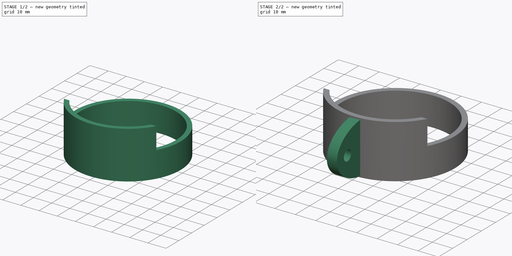
[diagram: build sequence overview — one tinted view per stage of 2, left to right]
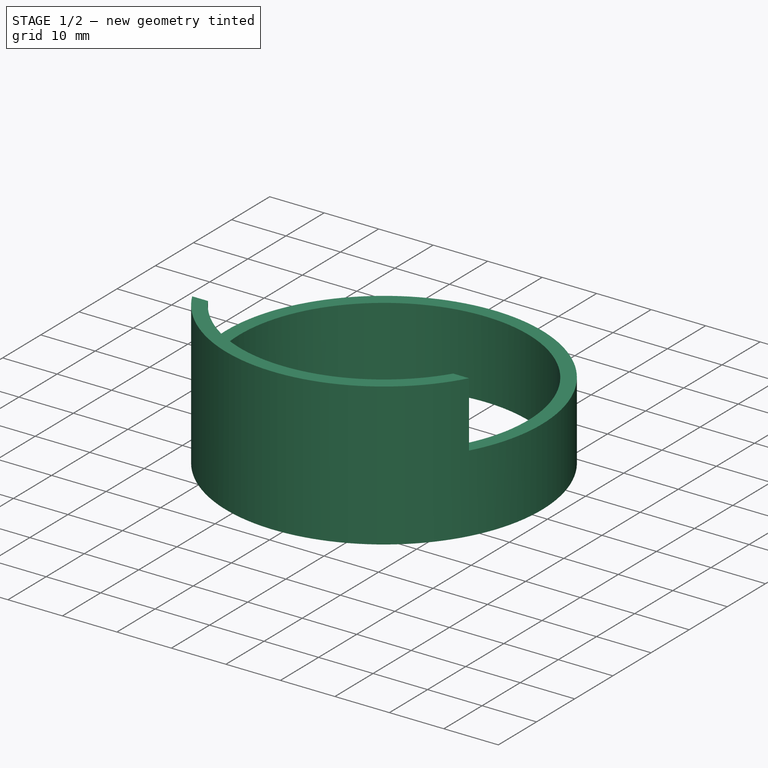
[diagram: stage 1 of 2 — iso view after this stage's code; geometry added in this stage tinted green]
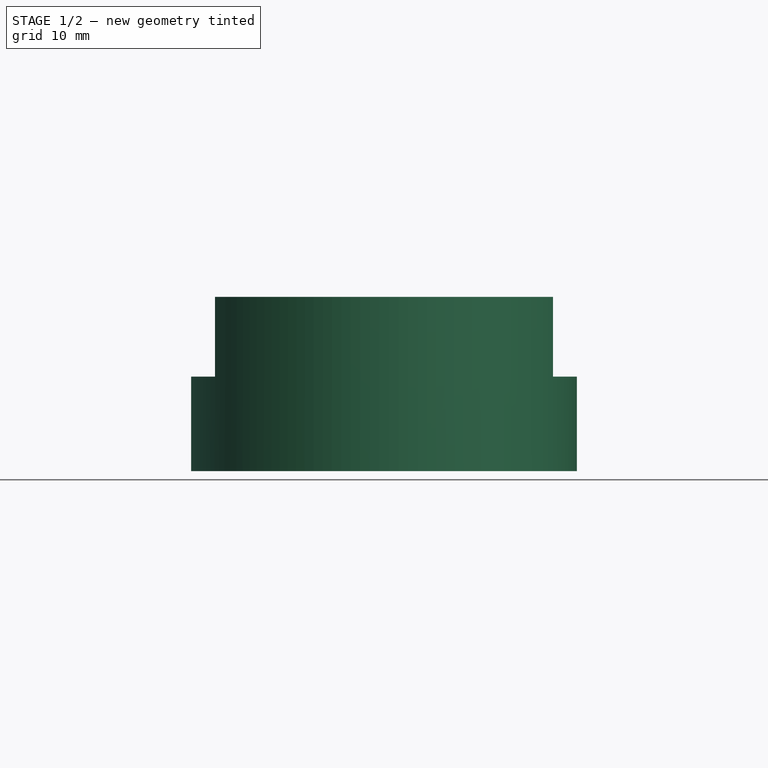
[diagram: stage 1 of 2 — front view after this stage's code; geometry added in this stage tinted green]
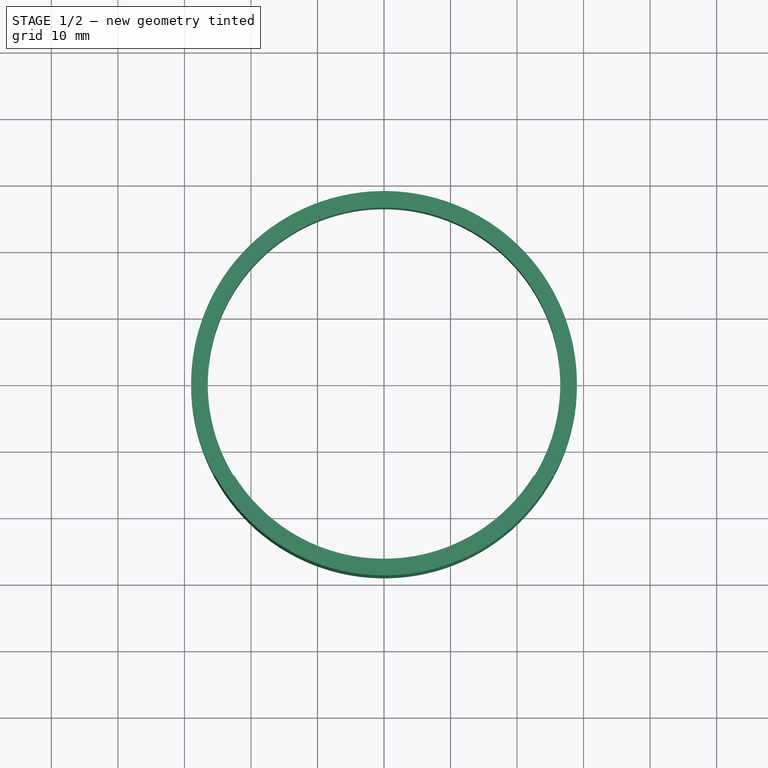
[diagram: stage 1 of 2 — top view after this stage's code; geometry added in this stage tinted green]
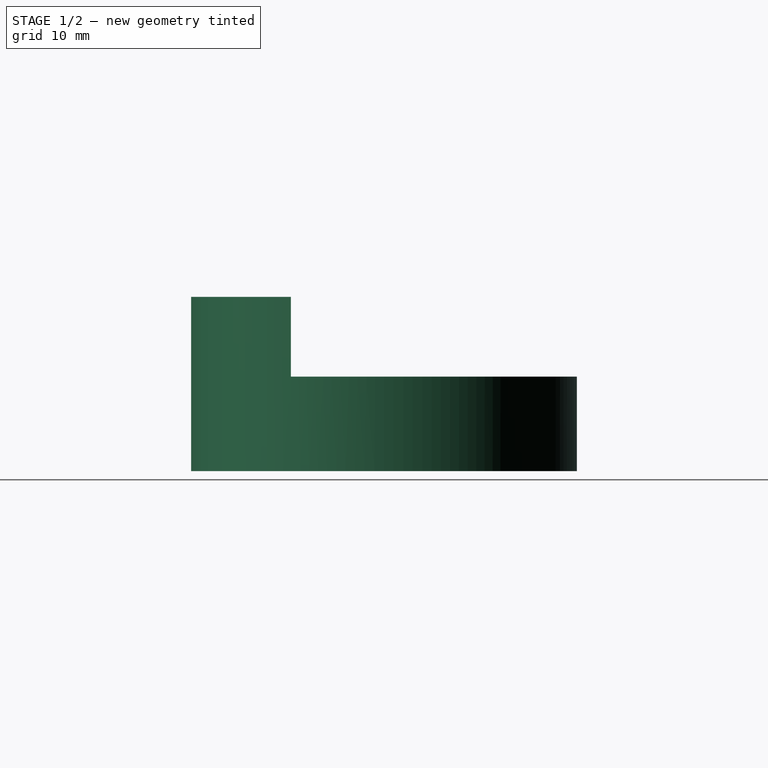
[diagram: stage 1 of 2 — right view after this stage's code; geometry added in this stage tinted green]
FCSTD DOCUMENT  (FreeCAD 0.18.4R)
Label: innovate_afr_gauge_pod
License: All rights reserved
LicenseURL: http://en.wikipedia.org/wiki/All_rights_reserved
objects: Sketcher::SketchObject×3, PartDesign::Pad×3, PartDesign::Body×2, PartDesign::Boolean×1
note: 12 computed .brp shape members not serialized (recipe doc carries the construction recipe); baked Part::Feature solids carry a one-line shape summary decoded from their .brp

FEATURE [Sketcher::SketchObject] Sketch
  MapMode = 5
  Support = -> [XY_Plane]
  sketch-geometry (2):
    g0: Circle CenterX=0 CenterY=0 CenterZ=0 NormalX=0 NormalY=0 NormalZ=1 AngleXU=0 Radius=26.5
    g1: Circle CenterX=0 CenterY=0 CenterZ=0 NormalX=0 NormalY=0 NormalZ=1 AngleXU=0 Radius=29
  constraints (4):
    c: Radius(g0) = 26.5
    c: Coincident(g1,g0)
    c: Radius(g1) = 29
    c: Coincident(g0,g-1)
FEATURE [PartDesign::Pad] Pad
  Length = 14.2
  Length2 = 100
  Profile = -> Sketch
  Type = 0
FEATURE [PartDesign::Body] Body001  label="Uchwyt"
  Group = -> [Sketch003,Pad001]
  Origin = -> Origin001
  Placement = pos=(-2,16,-4) rot=(0,0,1;0rad)
  Tip = -> Pad001
FEATURE [PartDesign::Pad] Pad002
  BaseFeature = -> Pad
  Length = 12
  Length2 = 100
  Profile = -> Sketch001
  Type = 0
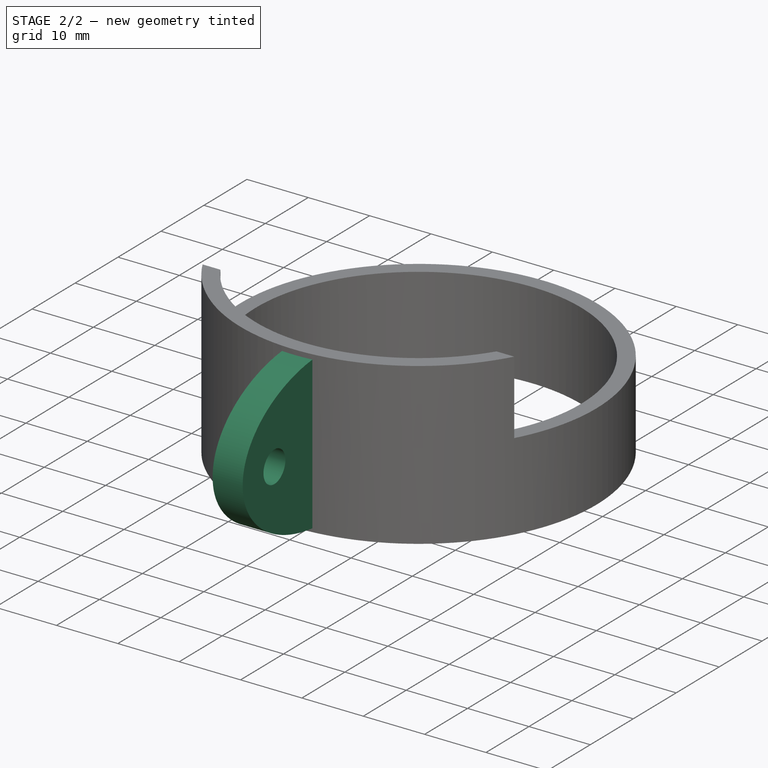
[diagram: stage 2 of 2 — iso view after this stage's code; geometry added in this stage tinted green]
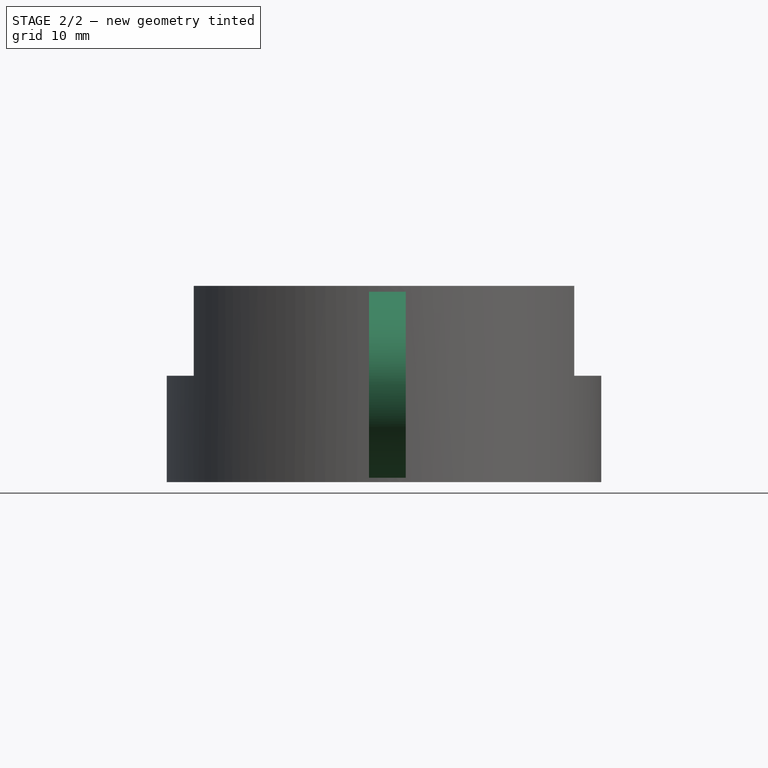
[diagram: stage 2 of 2 — front view after this stage's code; geometry added in this stage tinted green]
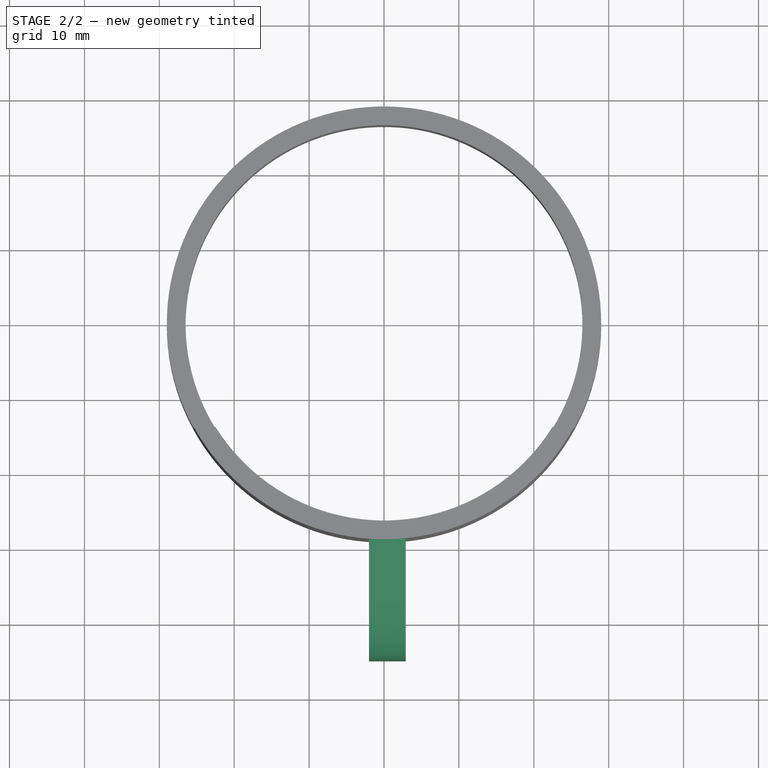
[diagram: stage 2 of 2 — top view after this stage's code; geometry added in this stage tinted green]
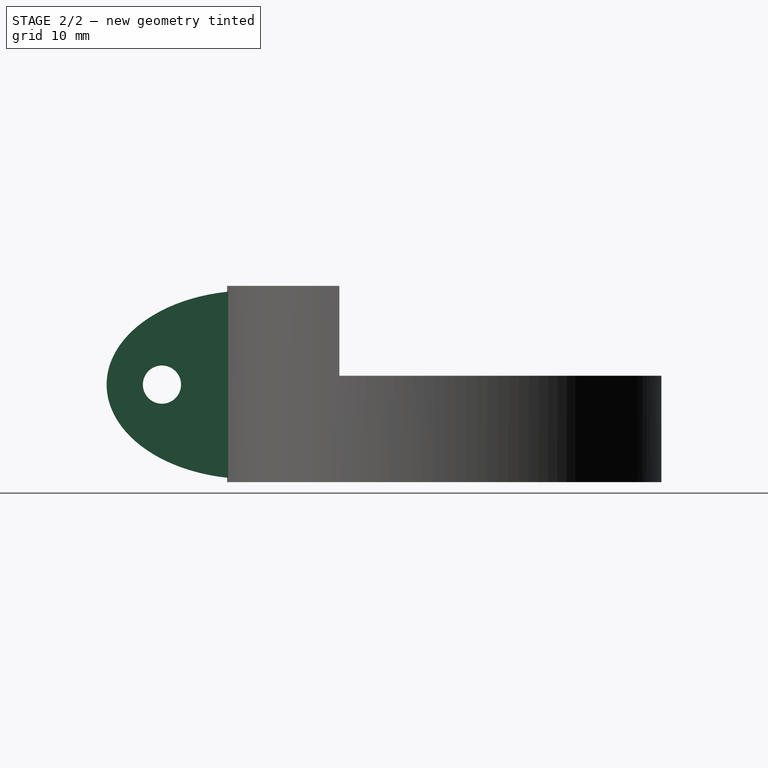
[diagram: stage 2 of 2 — right view after this stage's code; geometry added in this stage tinted green]
FEATURE [Sketcher::SketchObject] Sketch001
  ExternalGeometry = -> [Pad]
  MapMode = 5
  Placement = pos=(0,0,14.2) rot=(0,0,1;0rad)
  Support = -> [Pad]
  sketch-geometry (8):
    g0: LineSegment [constr] StartX=0 StartY=0 StartZ=0 EndX=0 EndY=-29 EndZ=0
    g1: LineSegment [constr] StartX=-25.3969 StartY=-14 StartZ=0 EndX=25.3969 EndY=-14 EndZ=0
    g2: ArcOfCircle CenterX=2.4e-15 CenterY=4.7e-15 CenterZ=0 NormalX=0 NormalY=0 NormalZ=1 AngleXU=0 Radius=29 StartAngle=3.64539 EndAngle=5.77938
    g3: GeomPoint X=-22.5 Y=-14 Z=0
    g4: GeomPoint X=22.5 Y=-14 Z=0
    g5: ArcOfCircle CenterX=1.4e-15 CenterY=1e-15 CenterZ=0 NormalX=0 NormalY=0 NormalZ=1 AngleXU=0 Radius=26.5 StartAngle=3.69819 EndAngle=5.72659
    g6: LineSegment StartX=-25.3969 StartY=-14 StartZ=0 EndX=-22.5 EndY=-14 EndZ=0
    g7: LineSegment StartX=25.3969 StartY=-14 StartZ=0 EndX=22.5 EndY=-14 EndZ=0
  constraints (21):
    c: Coincident(g0,g-4)
    c: Vertical(g0)
    c: Horizontal(g1)
    c: DistanceY(g0,g1) = 15
    c: PointOnObject(g0,g-4)
    c: PointOnObject(g1,g-4)
    c: PointOnObject(g1,g-4)
    c: Coincident(g2,g1)
    c: Coincident(g2,g1)
    c: Tangent(g2,g-4)
    c: PointOnObject(g3,g1)
    c: PointOnObject(g3,g-3)
    c: PointOnObject(g4,g1)
    c: PointOnObject(g4,g-3)
    c: Coincident(g5,g3)
    c: Coincident(g5,g4)
    c: Tangent(g5,g-3)
    c: Coincident(g6,g2)
    c: Coincident(g6,g3)
    c: Coincident(g7,g2)
    c: Coincident(g7,g4)
FEATURE [Sketcher::SketchObject] Sketch003
  MapMode = 5
  Placement = pos=(0,0,0) rot=(0.57735,0.57735,0.57735;2.0944rad)
  Support = -> [YZ_Plane001]
  sketch-geometry (7):
    g0: LineSegment StartX=-44 StartY=29.5 StartZ=0 EndX=-44 EndY=4.5 EndZ=0
    g1: ArcOfEllipse CenterX=-41.9161 CenterY=16.998 CenterZ=0 NormalX=0 NormalY=0 NormalZ=1 MajorRadius=19.1639 MinorRadius=12.5746 AngleXU=3.13992 StartAngle=4.82244 EndAngle=7.74612
    g2: LineSegment [constr] StartX=-61.08 StartY=17.03 StartZ=0 EndX=-22.7522 EndY=16.966 EndZ=0
    g3: LineSegment [constr] StartX=-41.9371 StartY=4.42348 StartZ=0 EndX=-41.8951 EndY=29.5726 EndZ=0
    g4: GeomPoint X=-56.3776 Y=17.0222 Z=0
    g5: GeomPoint X=-27.4546 Y=16.9739 Z=0
    g6: Circle CenterX=-53.6908 CenterY=17.0177 CenterZ=0 NormalX=0 NormalY=0 NormalZ=1 AngleXU=0 Radius=2.55
  constraints (13):
    c: Vertical(g0)
    c: DistanceY(g0,g0) = 25
    c: DistanceY(g-1,g0) = 4.5
    c: DistanceX(g0,g-1) = 44
    c: InternalAlignment(g2-g5 -> g1) x4
    c: DistanceY(g2,g0) = 12.47
    c: DistanceX(g2,g0) = 17.08
    c: Coincident(g1,g0)
    c: Coincident(g1,g0)
    c: DistanceX(g1) = -41.9161
    c: PointOnObject(g6,g2)
    c: Radius(g6) = 2.55
    c: DistanceX(g6) = -53.6908
FEATURE [PartDesign::Pad] Pad001
  Length = 4.9
  Length2 = 100
  Placement = pos=(0,0,0) rot=(0.57735,0.57735,0.57735;2.0944rad)
  Profile = -> Sketch003
  Type = 0
FEATURE [PartDesign::Boolean] Boolean
  BaseFeature = -> Pad002
  Group = -> [Body001]
  Type = 0
FEATURE [PartDesign::Body] Body  label="Kubek"
  Group = -> [Sketch,Pad,Sketch001,Pad002,Boolean]
  Origin = -> Origin
  Tip = -> Boolean
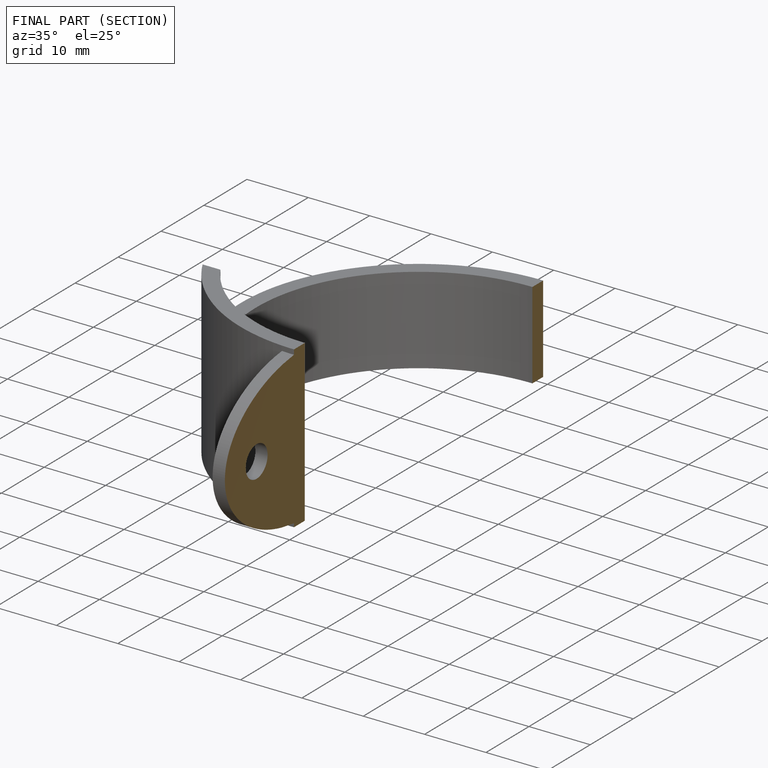
[diagram: finished part — half-section view (interior)]
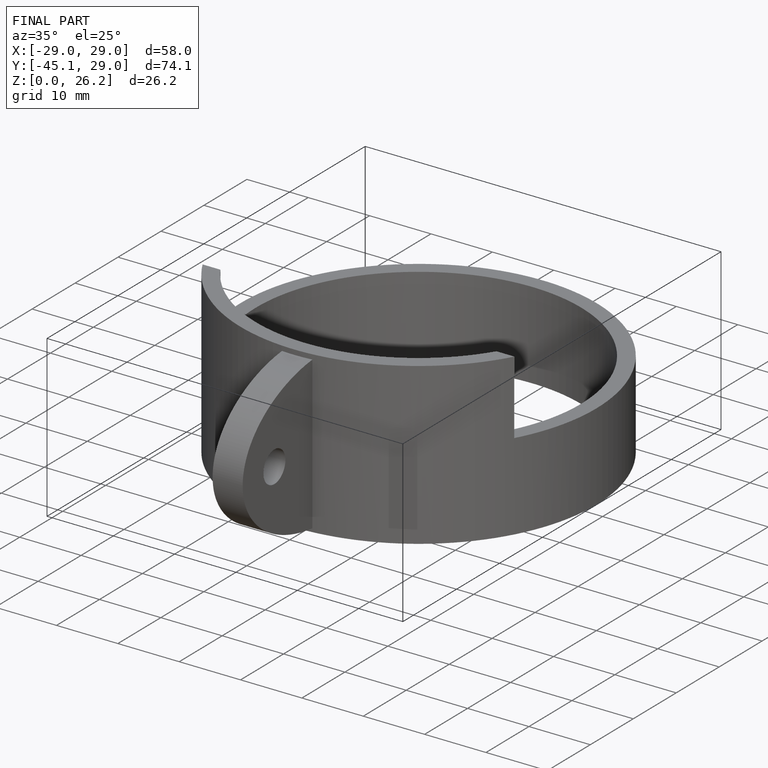
[diagram: finished part — iso view with bounding-box wireframe]
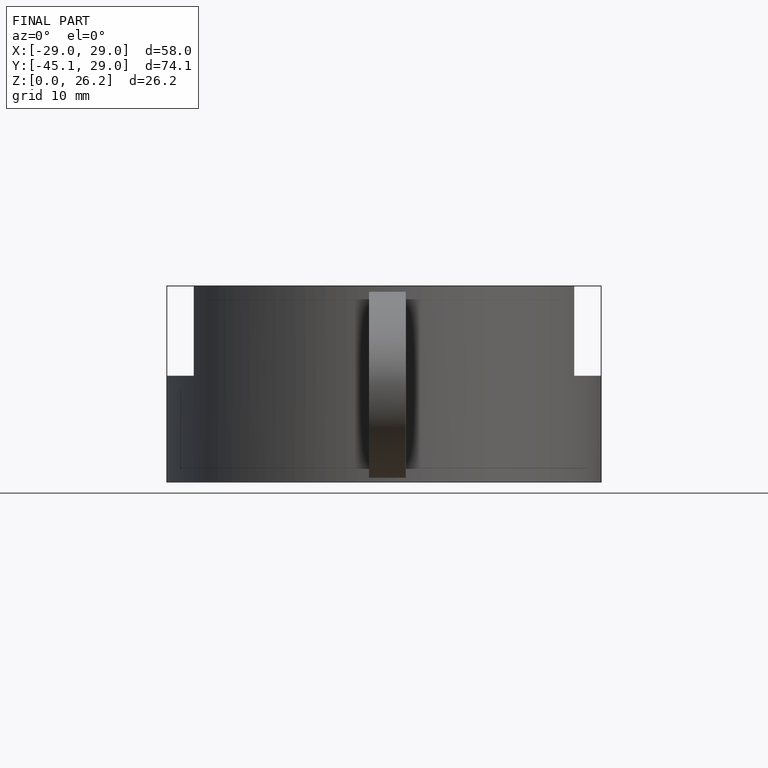
[diagram: finished part — front view with bounding-box wireframe]
